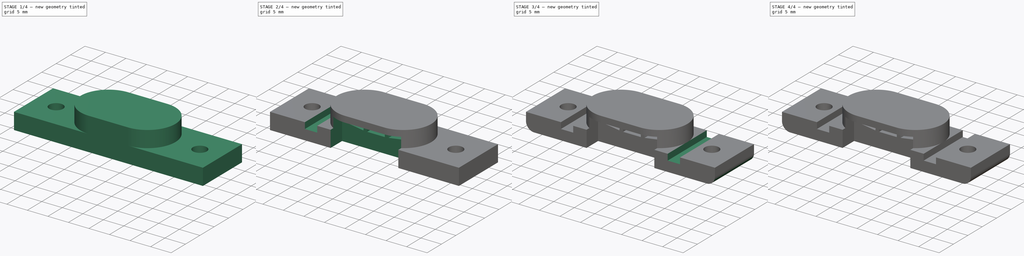
[diagram: build sequence overview — one tinted view per stage of 4, left to right]
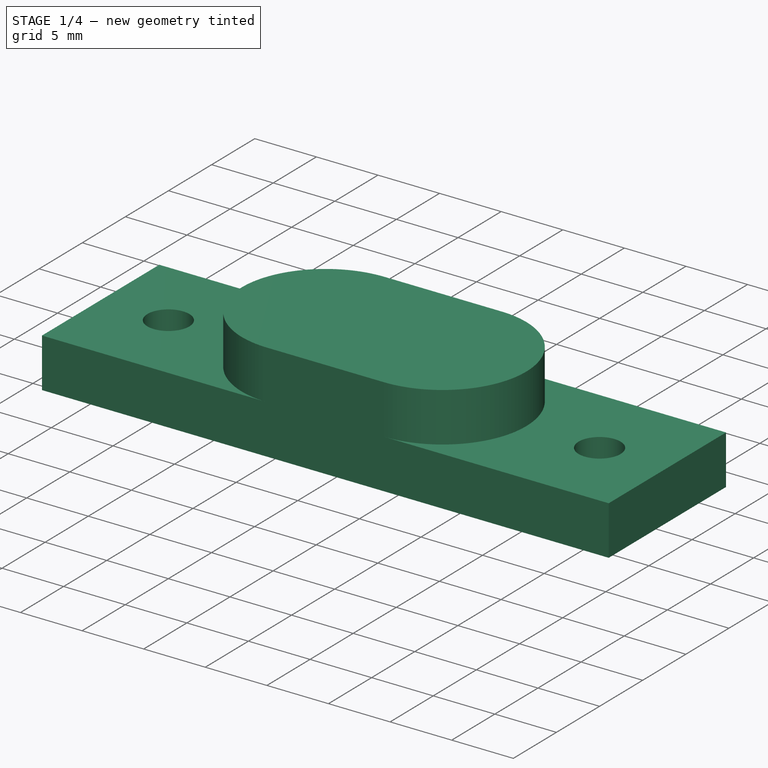
[diagram: stage 1 of 4 — iso view after this stage's code; geometry added in this stage tinted green]
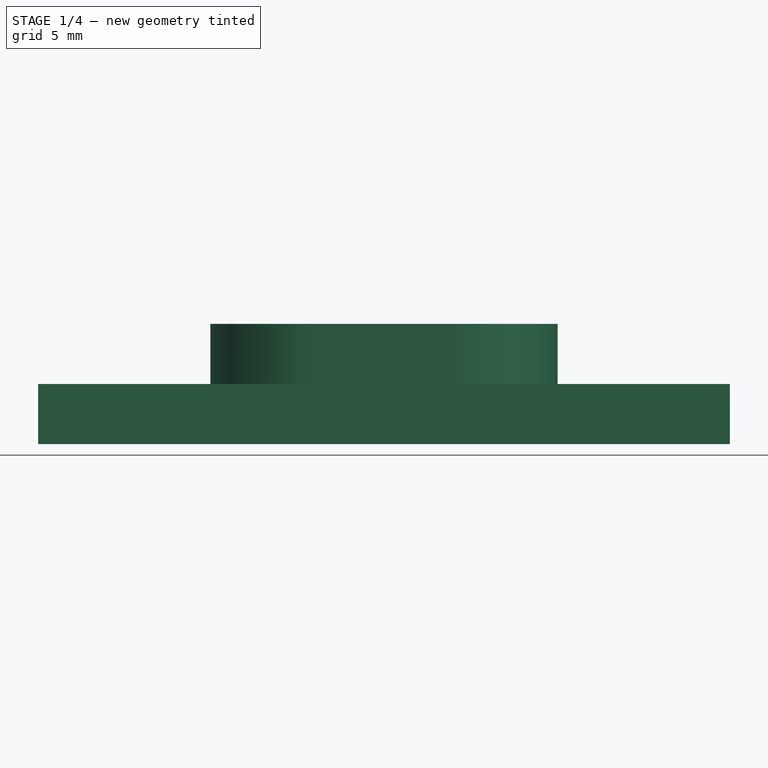
[diagram: stage 1 of 4 — front view after this stage's code; geometry added in this stage tinted green]
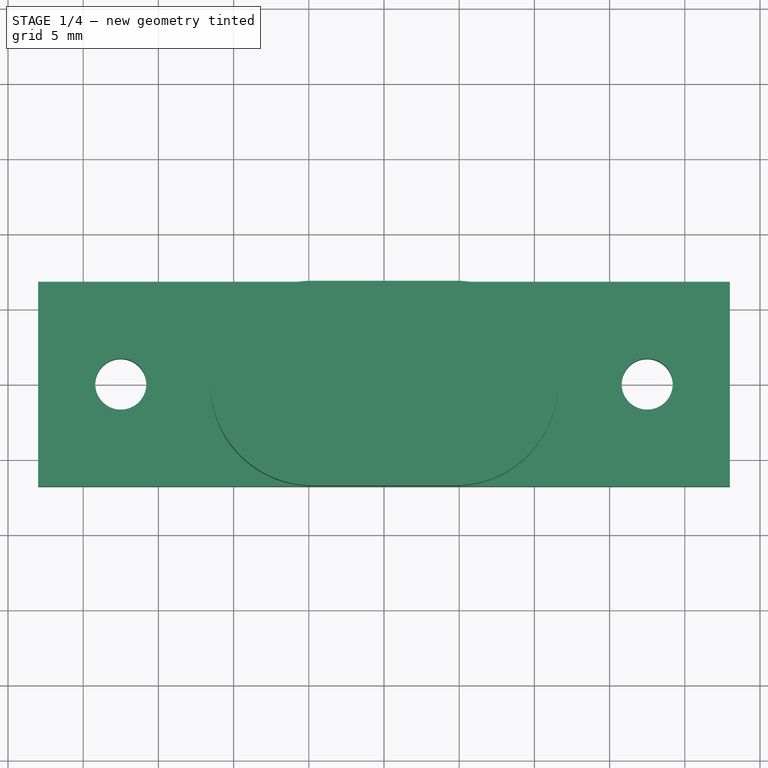
[diagram: stage 1 of 4 — top view after this stage's code; geometry added in this stage tinted green]
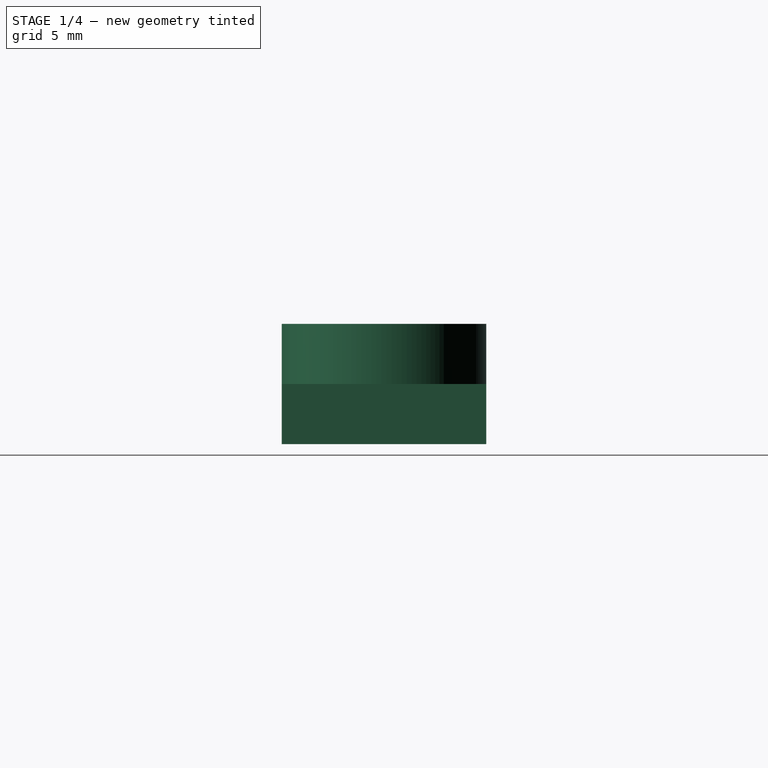
[diagram: stage 1 of 4 — right view after this stage's code; geometry added in this stage tinted green]
FCSTD DOCUMENT  (FreeCAD 0.16R6706 (Git))
Label: MotorHall3SensorMountPD5060
License: All rights reserved
LicenseURL: http://en.wikipedia.org/wiki/All_rights_reserved
objects: Sketcher::SketchObject×5, PartDesign::Pocket×3, PartDesign::Pad×2, PartDesign::Fillet×2, PartDesign::Chamfer×2, PartDesign::Mirrored×1
note: 20 computed .brp shape members not serialized (recipe doc carries the construction recipe); baked Part::Feature solids carry a one-line shape summary decoded from their .brp

FEATURE [Sketcher::SketchObject] Sketch
  sketch-geometry (6):
    g0: LineSegment StartX=-23 StartY=-6.8 StartZ=0 EndX=23 EndY=-6.8 EndZ=0
    g1: LineSegment StartX=-23 StartY=6.8 StartZ=0 EndX=23 EndY=6.8 EndZ=0
    g2: Circle CenterX=-17.5 CenterY=0 CenterZ=0 NormalX=0 NormalY=0 NormalZ=1 Radius=1.7
    g3: Circle CenterX=17.5 CenterY=0 CenterZ=0 NormalX=0 NormalY=0 NormalZ=1 Radius=1.7
    g4: LineSegment StartX=-23 StartY=6.8 StartZ=0 EndX=-23 EndY=-6.8 EndZ=0
    g5: LineSegment StartX=23 StartY=6.8 StartZ=0 EndX=23 EndY=-6.8 EndZ=0
  constraints (16):
    c: Horizontal(g0)
    c: Radius(g2) = 1.7
    c: Equal(g2,g3)
    c: DistanceY(g0,g1) = 13.6
    c: DistanceX(g2,g3) = 35
    c: DistanceY(g0,g1) = 13.6
    c: Symmetric(g3,g2,g-1)
    c: PointOnObject(g2,g-1)
    c: Symmetric(g0,g1,g-1)
    c: Coincident(g4,g1)
    c: Vertical(g4)
    c: Coincident(g5,g1)
    c: Vertical(g5)
    c: Coincident(g5,g0)
    c: Coincident(g0,g4)
    c: DistanceX(g1,g1) = 46
FEATURE [PartDesign::Pad] Pad
  Length = 4
  Length2 = 100
  Reversed = true
  Sketch = -> Sketch
  Type = 0
FEATURE [Sketcher::SketchObject] Sketch001
  Support = -> Pad [Face7]
  sketch-geometry (4):
    g0: ArcOfCircle CenterX=-4.75 CenterY=0 CenterZ=0 NormalX=0 NormalY=0 NormalZ=1 Radius=6.8 StartAngle=1.5708 EndAngle=4.71239
    g1: ArcOfCircle CenterX=4.75 CenterY=0 CenterZ=0 NormalX=0 NormalY=0 NormalZ=1 Radius=6.8 StartAngle=4.71239 EndAngle=7.85398
    g2: LineSegment StartX=-4.75 StartY=-6.8 StartZ=0 EndX=4.75 EndY=-6.8 EndZ=0
    g3: LineSegment StartX=-4.75 StartY=6.8 StartZ=0 EndX=4.75 EndY=6.8 EndZ=0
  constraints (9):
    c: Tangent(g0,g3) = 1.5708
    c: Tangent(g0,g2) = -1.5708
    c: Tangent(g2,g1) = -1.5708
    c: Tangent(g3,g1) = 1.5708
    c: Horizontal(g2)
    c: Equal(g0,g1)
    c: Symmetric(g1,g0,g-1)
    c: DistanceY(g1,g1) = 13.6
    c: DistanceX(g0,g1) = 9.5
FEATURE [PartDesign::Pad] Pad001
  Length = 4
  Length2 = 100
  Sketch = -> Sketch001
  Type = 0
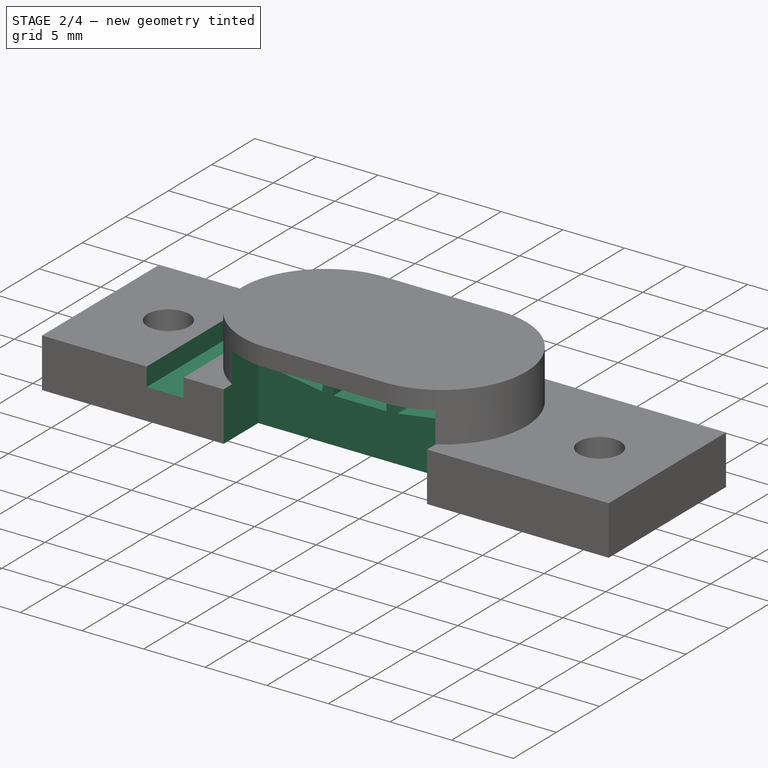
[diagram: stage 2 of 4 — iso view after this stage's code; geometry added in this stage tinted green]
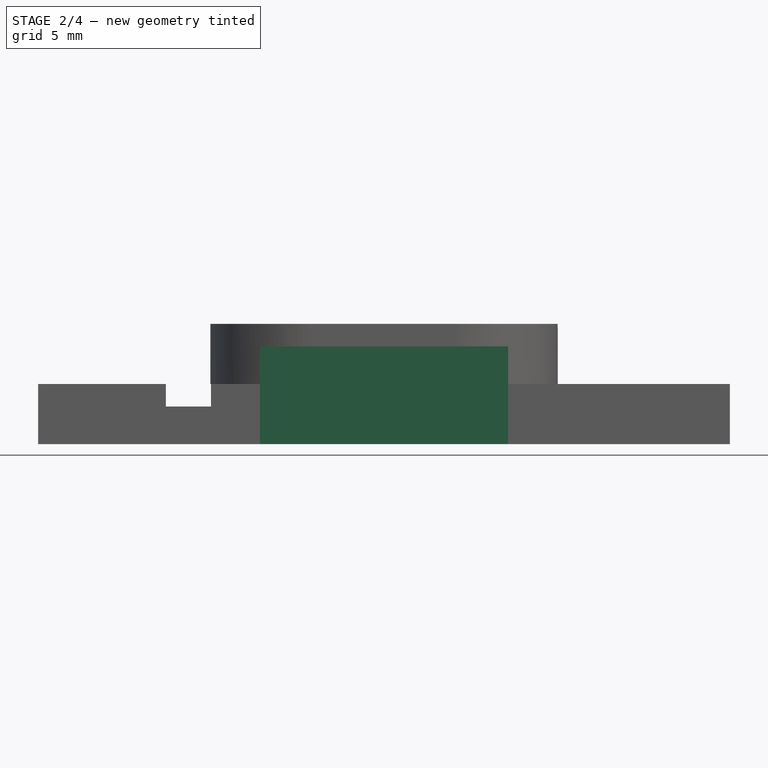
[diagram: stage 2 of 4 — front view after this stage's code; geometry added in this stage tinted green]
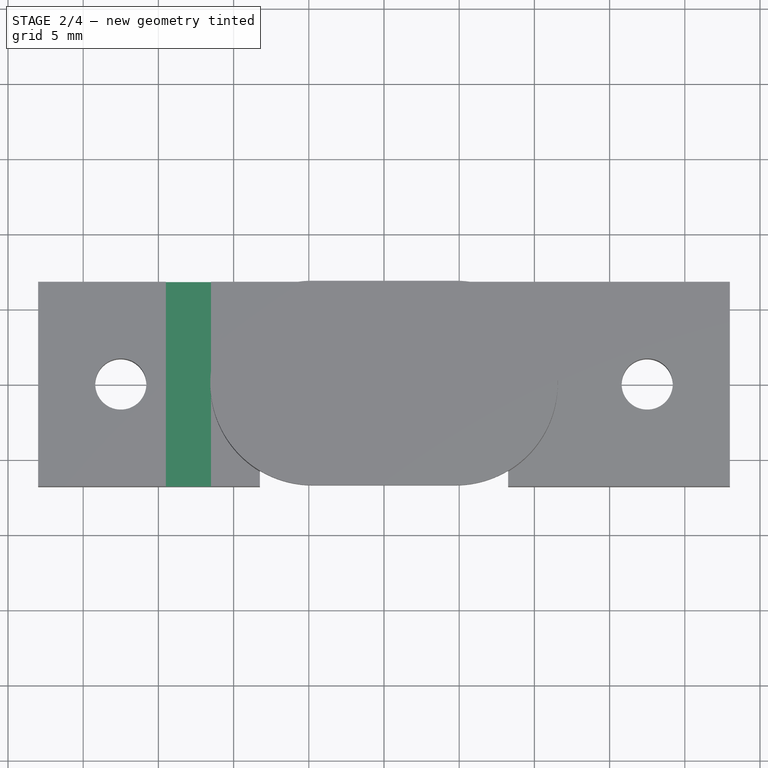
[diagram: stage 2 of 4 — top view after this stage's code; geometry added in this stage tinted green]
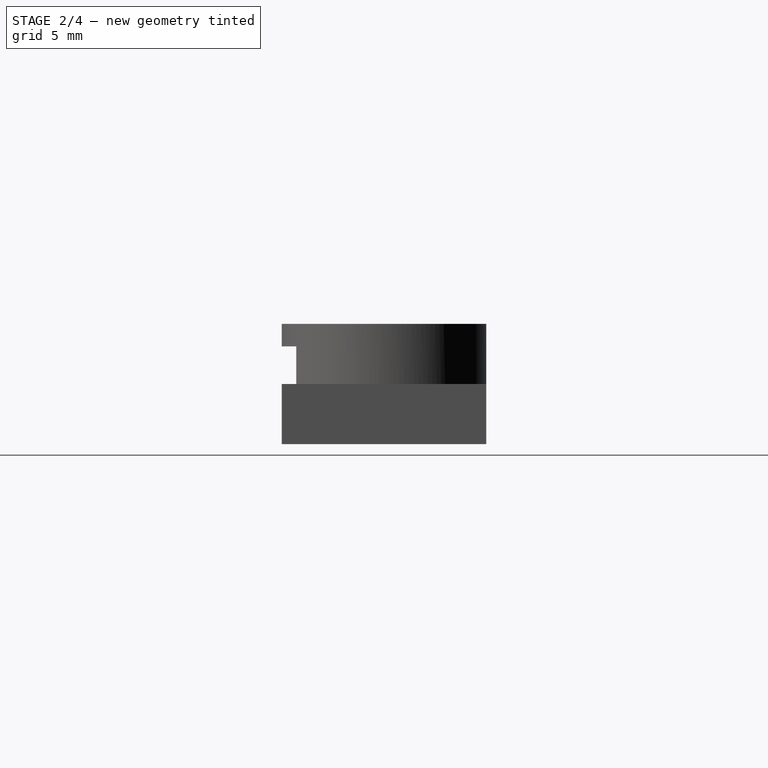
[diagram: stage 2 of 4 — right view after this stage's code; geometry added in this stage tinted green]
FEATURE [Sketcher::SketchObject] Sketch002  label="SensorGuides"
  Placement = pos=(0,-6.8,0) rot=(1,0,0;1.5708rad)
  Support = -> Pad001 [Face3]
  sketch-geometry (19):
    g0: Circle [constr] CenterX=0 CenterY=34.5 CenterZ=0 NormalX=0 NormalY=0 NormalZ=1 Radius=34
    g1: LineSegment [constr] StartX=0 StartY=34.5 StartZ=0 EndX=-5.06719 EndY=0.879714 EndZ=0
    g2: LineSegment [constr] StartX=0 StartY=34.5 StartZ=0 EndX=0 EndY=0.5 EndZ=0
    g3: LineSegment StartX=-7.0665 StartY=2.04064 StartZ=0 EndX=-2.81452 EndY=1.3998 EndZ=0
    g4: LineSegment StartX=-2.81452 StartY=1.3998 StartZ=0 EndX=-3.06787 EndY=-0.281215 EndZ=0
    g5: LineSegment StartX=-3.06787 StartY=-0.281215 StartZ=0 EndX=-7.31985 EndY=0.359629 EndZ=0
    g6: LineSegment StartX=-7.31985 StartY=0.359629 StartZ=0 EndX=-7.0665 EndY=2.04064 EndZ=0
    g7: LineSegment StartX=-2.15 StartY=1.35 StartZ=0 EndX=2.15 EndY=1.35 EndZ=0
    g8: LineSegment StartX=2.15 StartY=1.35 StartZ=0 EndX=2.15 EndY=-0.35 EndZ=0
    g9: LineSegment StartX=2.15 StartY=-0.35 StartZ=0 EndX=-2.15 EndY=-0.35 EndZ=0
    g10: LineSegment StartX=-2.15 StartY=-0.35 StartZ=0 EndX=-2.15 EndY=1.35 EndZ=0
    g11: LineSegment [constr] StartX=-7.19317 StartY=1.20014 StartZ=0 EndX=-2.9412 EndY=0.559292 EndZ=0
    g12: LineSegment StartX=2.81452 StartY=1.3998 StartZ=0 EndX=7.0665 EndY=2.04064 EndZ=0
    g13: LineSegment StartX=7.0665 StartY=2.04064 StartZ=0 EndX=7.31985 EndY=0.359629 EndZ=0
    g14: LineSegment StartX=7.31985 StartY=0.359629 StartZ=0 EndX=3.06788 EndY=-0.281216 EndZ=0
    g15: LineSegment StartX=3.06788 StartY=-0.281216 StartZ=0 EndX=2.81452 EndY=1.3998 EndZ=0
    g16: LineSegment [constr] StartX=0 StartY=34.5 StartZ=0 EndX=5.06719 EndY=0.879714 EndZ=0
    g17: LineSegment [constr] StartX=2.9412 StartY=0.559292 StartZ=0 EndX=7.19317 EndY=1.20014 EndZ=0
    g18: Circle [constr] CenterX=0 CenterY=34.5 CenterZ=0 NormalX=0 NormalY=0 NormalZ=1 Radius=31.5
  constraints (56):
    c: PointOnObject(g0,g-2)
    c: DistanceY(g-1,g0) = 34.5
    c: Radius(g0) = 34
    c: Coincident(g1,g0)
    c: PointOnObject(g1,g0)
    c: Coincident(g2,g0)
    c: PointOnObject(g2,g0)
    c: Angle(g1,g2) = 0.149592
    c: Coincident(g3,g4)
    c: Coincident(g4,g5)
    c: Coincident(g5,g6)
    c: Coincident(g6,g3)
    c: Coincident(g7,g8)
    c: Coincident(g8,g9)
    c: Coincident(g9,g10)
    c: Coincident(g10,g7)
    c: Parallel(g9,g7)
    c: Parallel(g10,g8)
    c: Parallel(g4,g6)
    c: Parallel(g5,g3)
    c: PointOnObject(g11,g6)
    c: PointOnObject(g11,g4)
    c: Parallel(g11,g3)
    c: Tangent(g11,g0)
    c: PointOnObject(g1,g11)
    c: Symmetric(g5,g3,g1)
    c: Perpendicular(g3,g4)
    c: Perpendicular(g9,g10)
    c: Distance(g5,g4) = 4.3
    c: Symmetric(g7,g9,g2)
    c: Distance(g5,g3) = 1.7
    c: DistanceX(g1,g2) = 5.06719
    c: DistanceX(g7,g8) = 4.3
    c: Coincident(g12,g13)
    c: Coincident(g13,g14)
    c: Coincident(g14,g15)
    c: Coincident(g15,g12)
    c: Coincident(g16,g0)
    c: PointOnObject(g16,g0)
    c: Symmetric(g14,g12,g17)
    c: Symmetric(g12,g13,g17)
    c: PointOnObject(g16,g17)
    c: Tangent(g17,g0)
    c: Parallel(g14,g12)
    c: Parallel(g15,g13)
    c: Perpendicular(g15,g14)
    c: Angle(g2,g16) = 0.149592
    c: Equal(g9,g5)
    c: Equal(g10,g6)
    c: Horizontal(g9)
    c: PointOnObject(g2,g-2)
    c: Equal(g15,g6)
    c: Equal(g14,g5)
    c: Symmetric(g17,g17,g16)
    c: Coincident(g18,g0)
    c: Radius(g18) = 31.5
FEATURE [PartDesign::Pocket] Pocket
  Length = 10
  Sketch = -> Sketch002
  Type = 0
FEATURE [Sketcher::SketchObject] Sketch003
  Placement = pos=(0,-6.8,0) rot=(1,0,0;1.5708rad)
  Support = -> Pocket [Face3]
  sketch-geometry (5):
    g0: LineSegment StartX=-8.25 StartY=2.5 StartZ=0 EndX=8.25 EndY=2.5 EndZ=0
    g1: LineSegment StartX=8.25 StartY=-4.7 StartZ=0 EndX=-8.25 EndY=-4.7 EndZ=0
    g2: LineSegment StartX=-8.25 StartY=-4.7 StartZ=0 EndX=-8.25 EndY=2.5 EndZ=0
    g3: LineSegment StartX=8.25 StartY=2.5 StartZ=0 EndX=8.25 EndY=-4.7 EndZ=0
    g4: GeomPoint [constr] X=0 Y=-4.7 Z=0
  constraints (13):
    c: Coincident(g1,g2)
    c: Coincident(g2,g0)
    c: Horizontal(g0)
    c: Horizontal(g1)
    c: Vertical(g2)
    c: Vertical(g3)
    c: DistanceX(g1,g1) = 16.5
    c: Symmetric(g1,g3,g-2)
    c: DistanceY(g-1,g3) = 2.5
    c: Symmetric(g1,g1,g4)
    c: DistanceY(g1,g-1) = 4.7
    c: Coincident(g0,g3)
    c: Coincident(g1,g3)
FEATURE [PartDesign::Pocket] Pocket001
  Length = 4
  Sketch = -> Sketch003
  Type = 0
FEATURE [Sketcher::SketchObject] Sketch004  label="CableTieHoles"
  Placement = pos=(0,-6.8,0) rot=(1,0,0;1.5708rad)
  Support = -> Pocket001 [Face3]
  sketch-geometry (4):
    g0: LineSegment StartX=-14.5 StartY=0 StartZ=0 EndX=-11.5 EndY=0 EndZ=0
    g1: LineSegment StartX=-11.5 StartY=0 StartZ=0 EndX=-11.5 EndY=-1.5 EndZ=0
    g2: LineSegment StartX=-11.5 StartY=-1.5 StartZ=0 EndX=-14.5 EndY=-1.5 EndZ=0
    g3: LineSegment StartX=-14.5 StartY=-1.5 StartZ=0 EndX=-14.5 EndY=0 EndZ=0
  constraints (12):
    c: Coincident(g0,g1)
    c: Coincident(g1,g2)
    c: Coincident(g2,g3)
    c: Coincident(g3,g0)
    c: Horizontal(g0)
    c: Horizontal(g2)
    c: Vertical(g1)
    c: Vertical(g3)
    c: DistanceX(g0,g0) = 3
    c: DistanceY(g1,g-1) = 1.5
    c: DistanceX(g1,g-1) = 11.5
    c: DistanceY(g2,g0) = 1.5
FEATURE [PartDesign::Pocket] Pocket002
  Length = 5
  Sketch = -> Sketch004
  Type = 1
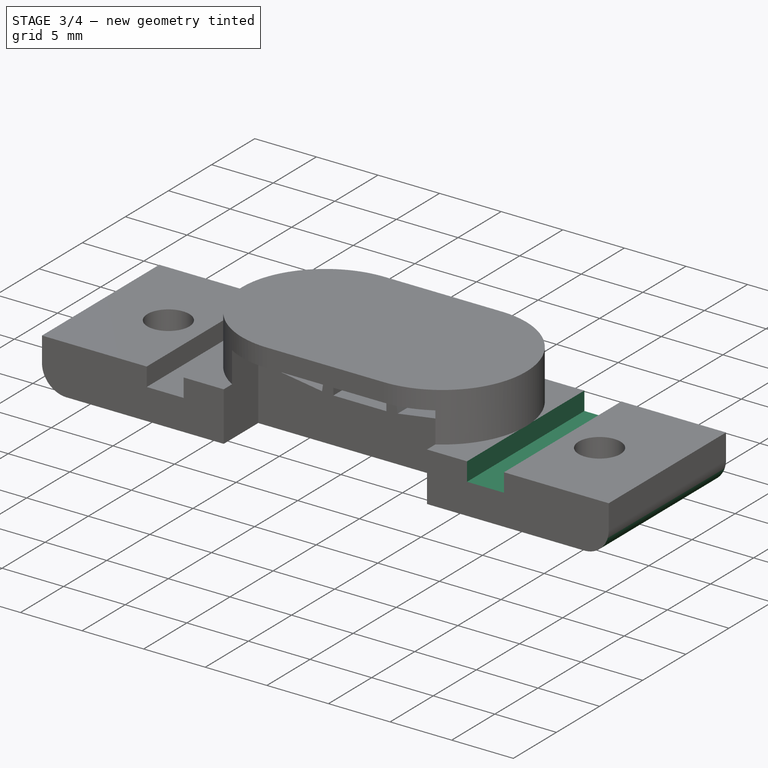
[diagram: stage 3 of 4 — iso view after this stage's code; geometry added in this stage tinted green]
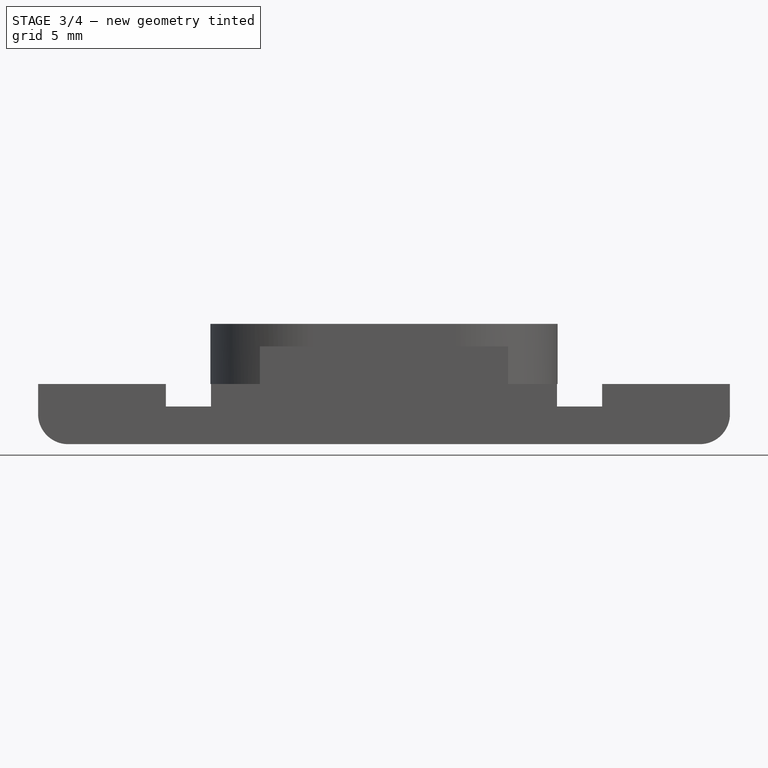
[diagram: stage 3 of 4 — front view after this stage's code; geometry added in this stage tinted green]
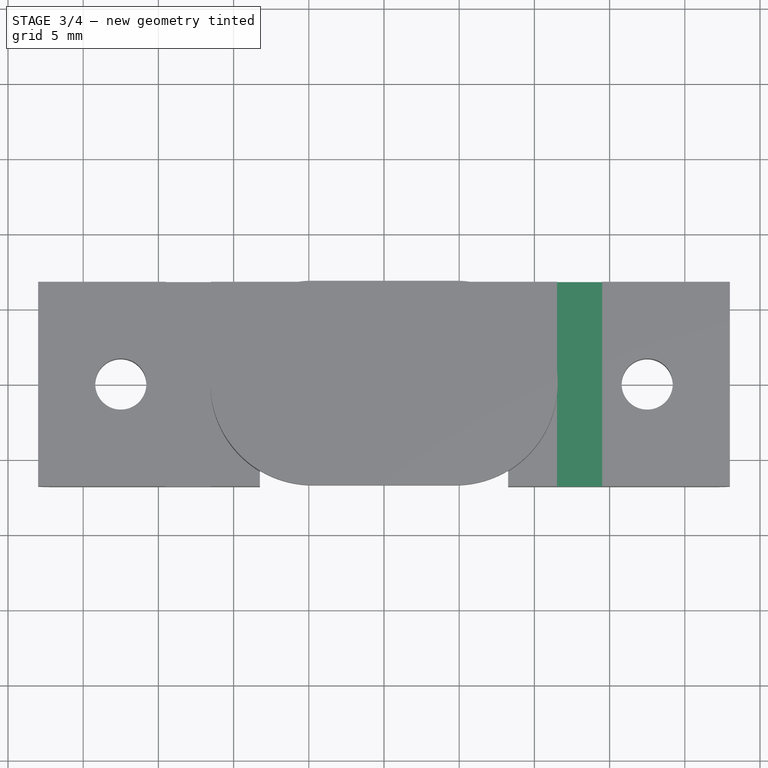
[diagram: stage 3 of 4 — top view after this stage's code; geometry added in this stage tinted green]
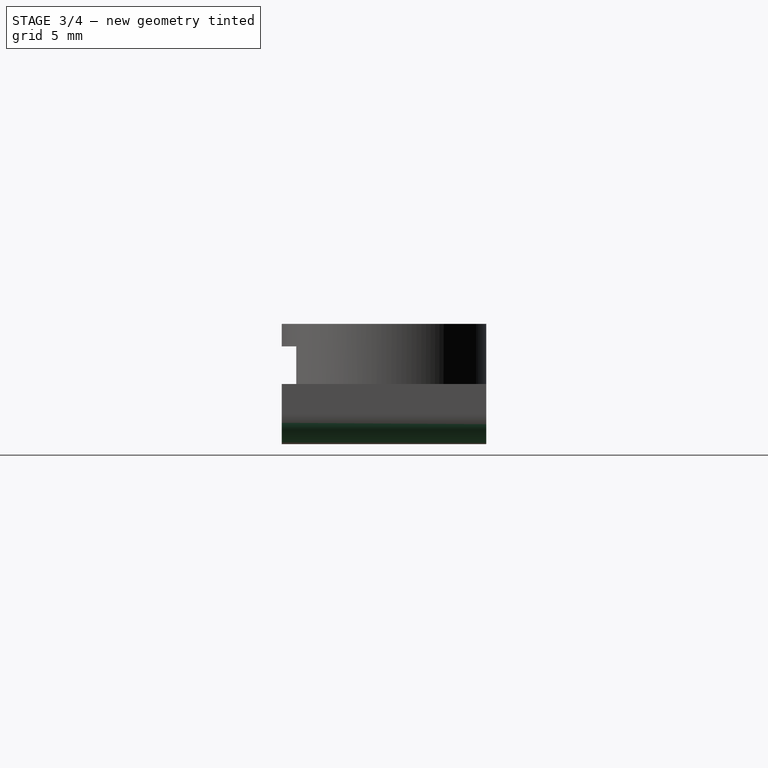
[diagram: stage 3 of 4 — right view after this stage's code; geometry added in this stage tinted green]
FEATURE [PartDesign::Mirrored] Mirrored
  MirrorPlane = -> Sketch004 [V_Axis]
  Originals = -> [Pocket002]
FEATURE [PartDesign::Fillet] Fillet
  Base = -> Mirrored [Edge4]
  Radius = 2
FEATURE [PartDesign::Fillet] Fillet001
  Base = -> Fillet [Edge32]
  Radius = 2
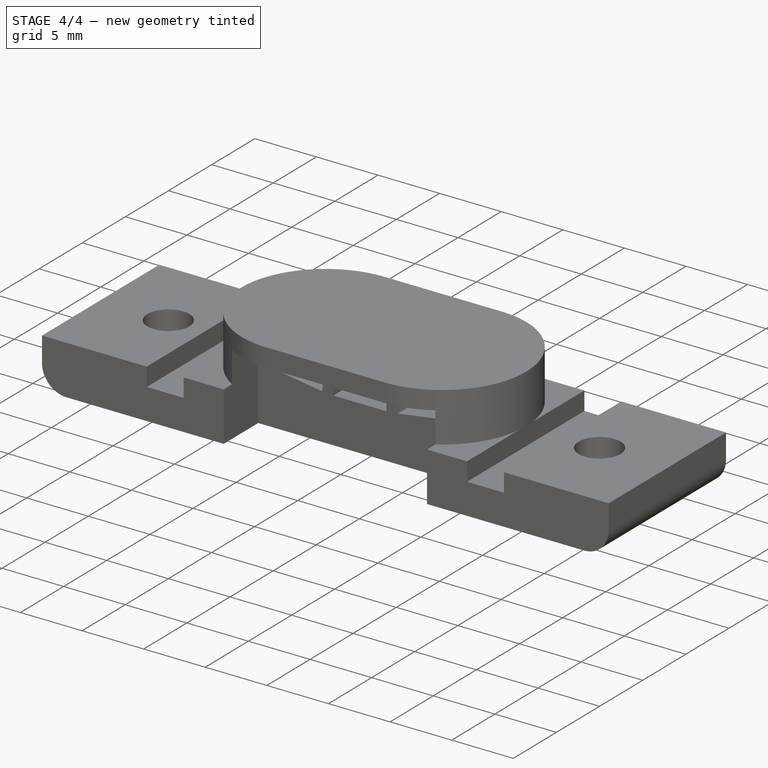
[diagram: stage 4 of 4 — iso view after this stage's code; geometry added in this stage tinted green]
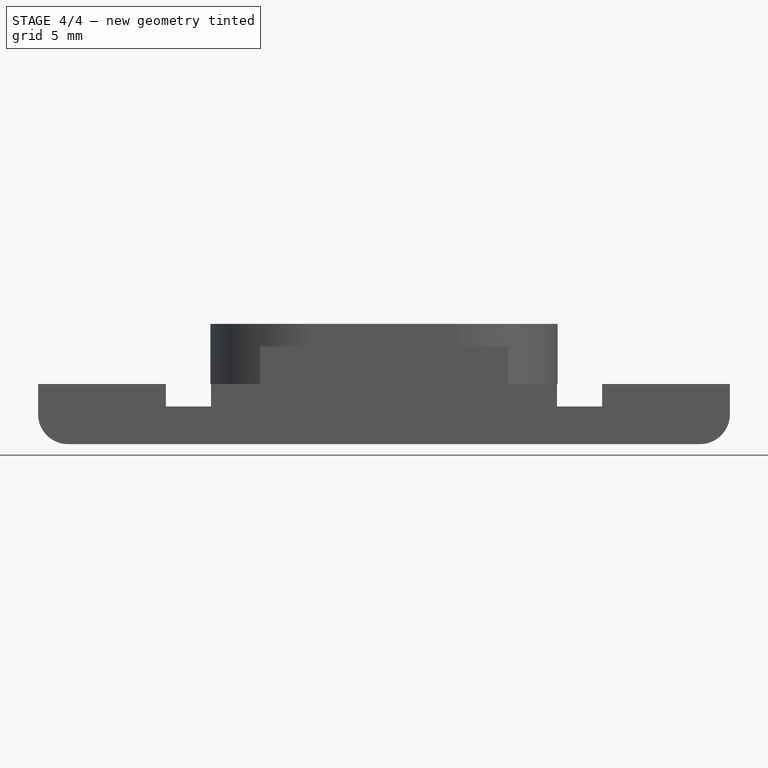
[diagram: stage 4 of 4 — front view after this stage's code; geometry added in this stage tinted green]
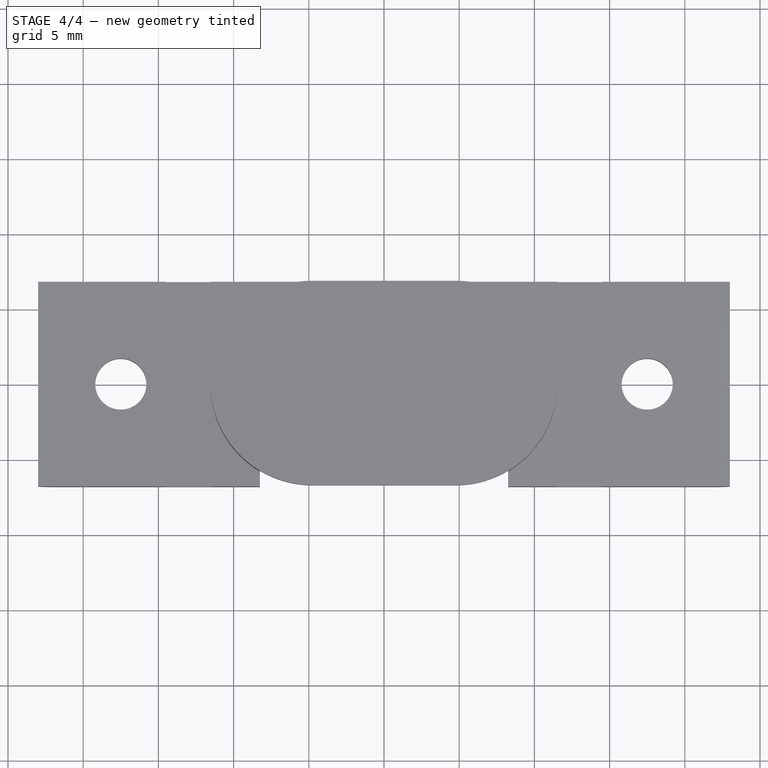
[diagram: stage 4 of 4 — top view after this stage's code; geometry added in this stage tinted green]
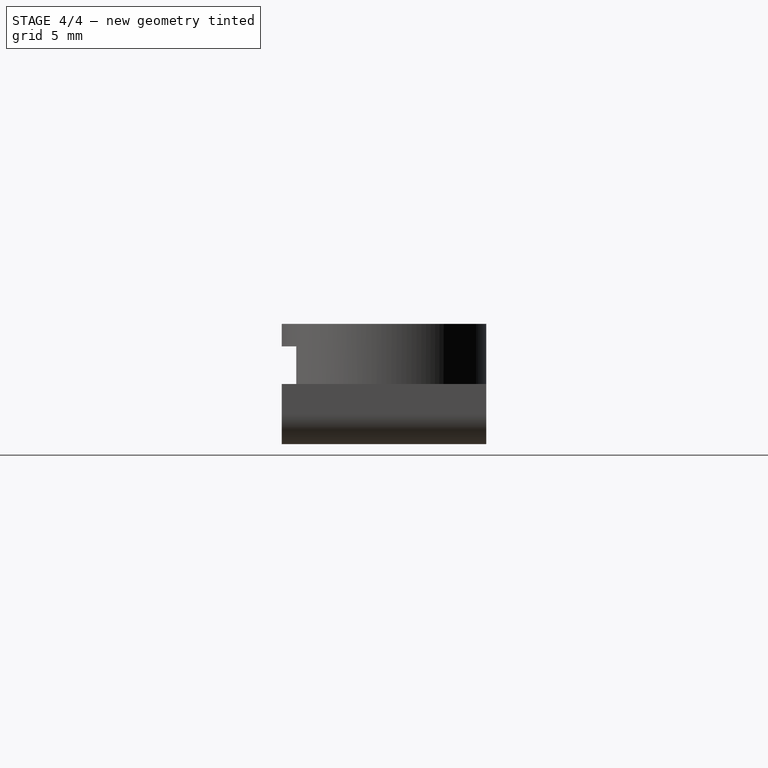
[diagram: stage 4 of 4 — right view after this stage's code; geometry added in this stage tinted green]
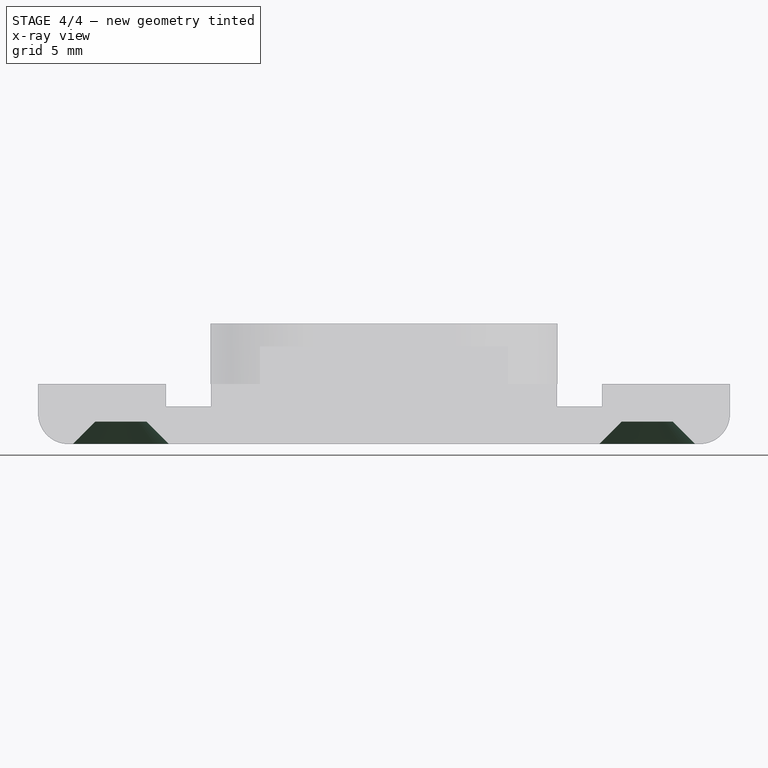
[diagram: stage 4 of 4 — x-ray composite at the front view; earlier geometry ghosted, this stage's added geometry solid]
FEATURE [PartDesign::Chamfer] Chamfer
  Base = -> Fillet001 [Edge24]
  Size = 1.5
FEATURE [PartDesign::Chamfer] Chamfer001
  Base = -> Chamfer [Edge10]
  Size = 1.5
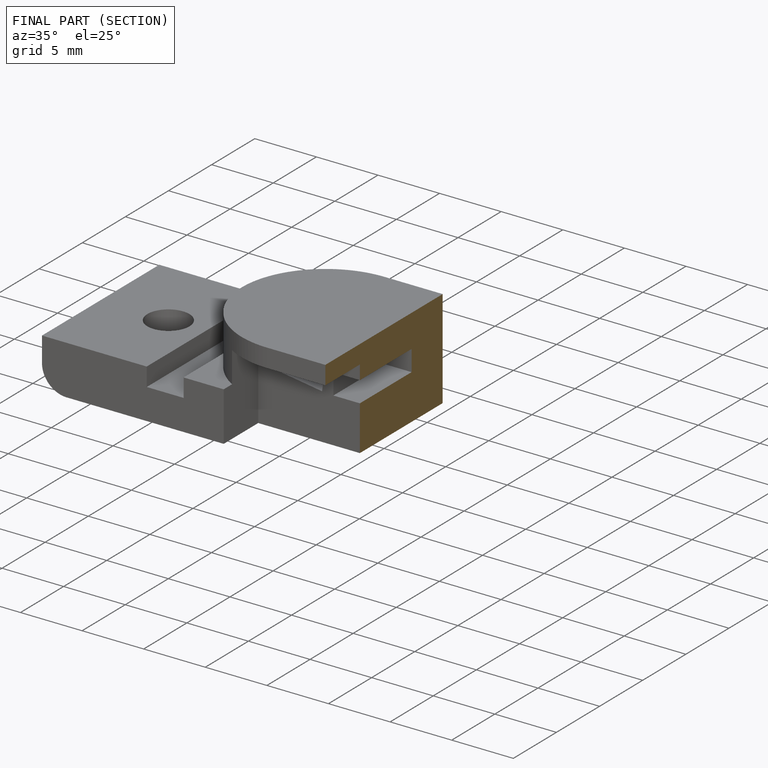
[diagram: finished part — half-section view (interior)]
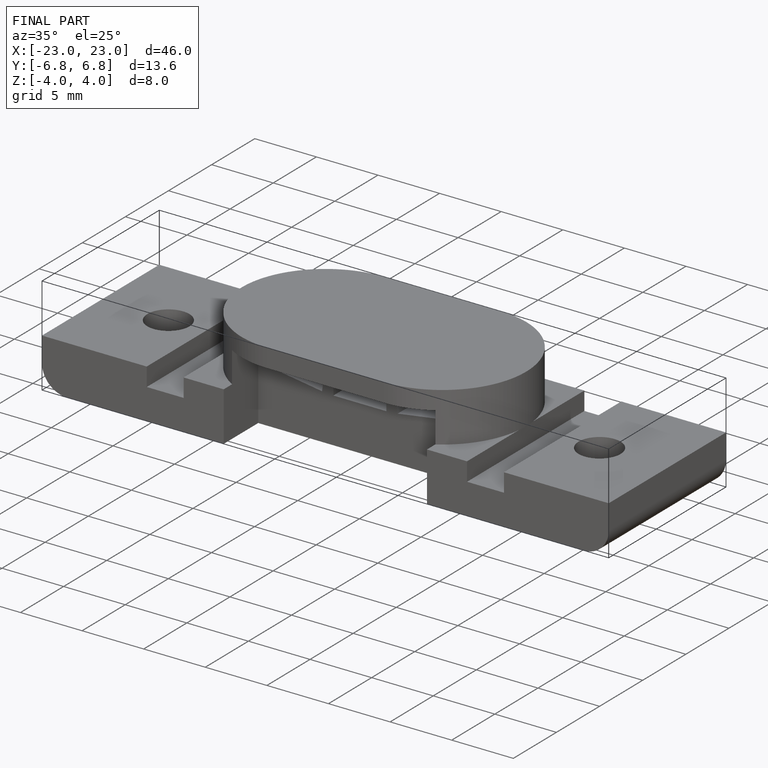
[diagram: finished part — iso view with bounding-box wireframe]
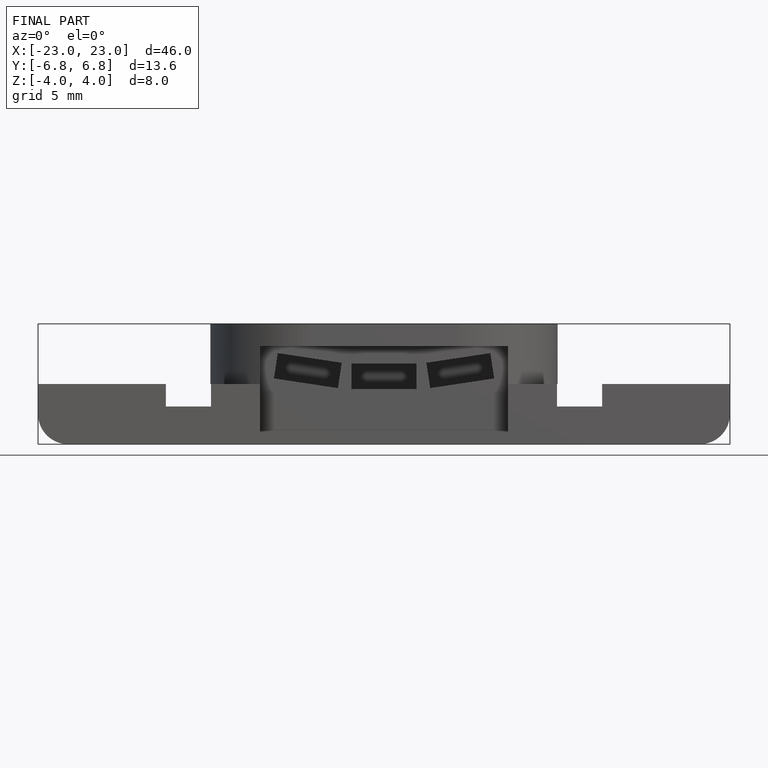
[diagram: finished part — front view with bounding-box wireframe]
